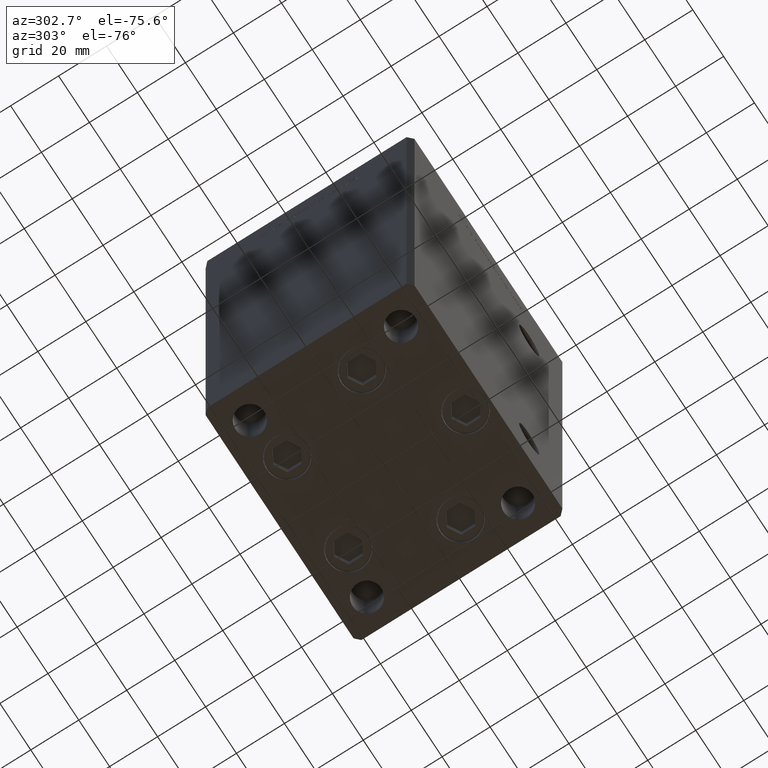
[diagram: clean part render]
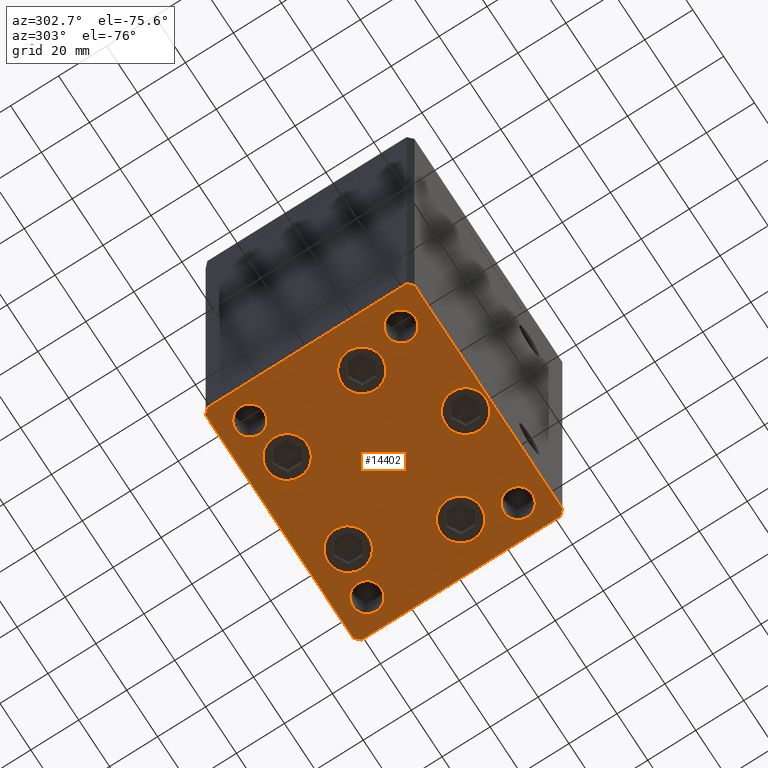
[diagram: same view with one face highlighted and labeled with its STEP entity id]
A machine part, auxiliary view. The second image highlights one B-rep face of the part: STEP entity #14402.
In plain terms, the highlighted planar face has unit normal (0, 0, -1).
Its self-contained STEP definition (entity closure, byte-faithful):
#284 = VERTEX_POINT ( 'NONE', #8846 ) ;
#310 = EDGE_CURVE ( 'NONE', #10782, #35854, #21615, .T. ) ;
#400 = VECTOR ( 'NONE', #9220, 1000.000000000000000 ) ;
#463 = CARTESIAN_POINT ( 'NONE',  ( 44.00000000000000000, 31.49999999999999289, 0.000000000000000000 ) ) ;
#598 = ORIENTED_EDGE ( 'NONE', *, *, #3019, .T. ) ;
#749 = CIRCLE ( 'NONE', #32765, 8.500000000000000000 ) ;
#963 = LINE ( 'NONE', #5705, #17200 ) ;
#985 = EDGE_LOOP ( 'NONE', ( #4115, #16907 ) ) ;
#1098 = DIRECTION ( 'NONE',  ( 1.000000000000000000, 0.000000000000000000, 0.000000000000000000 ) ) ;
#1134 = CARTESIAN_POINT ( 'NONE',  ( 47.99999999999990763, 43.50000000000000000, 0.000000000000000000 ) ) ;
#1200 = ORIENTED_EDGE ( 'NONE', *, *, #44315, .T. ) ;
#1215 = CARTESIAN_POINT ( 'NONE',  ( 8.500000000000003553, -34.00000000000000000, 0.000000000000000000 ) ) ;
#1233 = CARTESIAN_POINT ( 'NONE',  ( 38.00000000000000000, 31.49999999999999289, 0.000000000000000000 ) ) ;
#1415 = EDGE_CURVE ( 'NONE', #51004, #44416, #24982, .T. ) ;
#1787 = CARTESIAN_POINT ( 'NONE',  ( 4.163799117101000559E-15, -34.00000000000000000, 0.000000000000000000 ) ) ;
#2207 = VECTOR ( 'NONE', #33576, 1000.000000000000000 ) ;
#2396 = CARTESIAN_POINT ( 'NONE',  ( -48.00000000000000711, 43.49999999999996447, 0.000000000000000000 ) ) ;
#3019 = EDGE_CURVE ( 'NONE', #21949, #49872, #5696, .T. ) ;
#3061 = VECTOR ( 'NONE', #12252, 1000.000000000000000 ) ;
#3273 = CARTESIAN_POINT ( 'NONE',  ( 19.82068048781373193, 27.62500000000000000, 0.000000000000000000 ) ) ;
#3591 = AXIS2_PLACEMENT_3D ( 'NONE', #9272, #17981, #1098 ) ;
#3695 = ORIENTED_EDGE ( 'NONE', *, *, #19233, .T. ) ;
#3965 = VERTEX_POINT ( 'NONE', #8237 ) ;
#4056 = CARTESIAN_POINT ( 'NONE',  ( -47.99999999999999289, -43.50000000000001421, 0.000000000000000000 ) ) ;
#4079 = ORIENTED_EDGE ( 'NONE', *, *, #49234, .T. ) ;
#4100 = VERTEX_POINT ( 'NONE', #2396 ) ;
#4115 = ORIENTED_EDGE ( 'NONE', *, *, #47349, .T. ) ;
#4297 = CARTESIAN_POINT ( 'NONE',  ( -32.00000000000000000, 31.50000000000000000, 0.000000000000000000 ) ) ;
#4408 = DIRECTION ( 'NONE',  ( 1.000000000000000000, 0.000000000000000000, 0.000000000000000000 ) ) ;
#4498 = DIRECTION ( 'NONE',  ( -0.7071067811865474617, 0.7071067811865474617, 0.000000000000000000 ) ) ;
#4534 = VECTOR ( 'NONE', #4498, 1000.000000000000114 ) ;
#4627 = EDGE_CURVE ( 'NONE', #44802, #31048, #29439, .T. ) ;
#4743 = ORIENTED_EDGE ( 'NONE', *, *, #42031, .T. ) ;
#5439 = CARTESIAN_POINT ( 'NONE',  ( -50.00000000000000000, -41.50000000000000000, 0.000000000000000000 ) ) ;
#5459 = CARTESIAN_POINT ( 'NONE',  ( 19.82068048781373193, 27.62500000000000000, 0.000000000000000000 ) ) ;
#5696 = CIRCLE ( 'NONE', #14106, 6.000000000000005329 ) ;
#5705 = CARTESIAN_POINT ( 'NONE',  ( -48.00000000000000711, 43.49999999999996447, 0.000000000000000000 ) ) ;
#5711 = DIRECTION ( 'NONE',  ( 1.000000000000000000, 0.000000000000000000, 0.000000000000000000 ) ) ;
#5811 = DIRECTION ( 'NONE',  ( 1.000000000000000000, 0.000000000000000000, 0.000000000000000000 ) ) ;
#6248 = DIRECTION ( 'NONE',  ( 1.000000000000000000, 0.000000000000000000, 0.000000000000000000 ) ) ;
#6457 = AXIS2_PLACEMENT_3D ( 'NONE', #29150, #24928, #25539 ) ;
#7692 = VERTEX_POINT ( 'NONE', #46104 ) ;
#8237 = CARTESIAN_POINT ( 'NONE',  ( 32.00000000000000000, -31.49999999999999289, 0.000000000000000000 ) ) ;
#8300 = CARTESIAN_POINT ( 'NONE',  ( 38.00000000000000000, -31.49999999999999289, 0.000000000000000000 ) ) ;
#8388 = PLANE ( 'NONE',  #44644 ) ;
#8394 = CARTESIAN_POINT ( 'NONE',  ( 32.05550741379015278, -11.33333333333333037, 0.000000000000000000 ) ) ;
#8537 = AXIS2_PLACEMENT_3D ( 'NONE', #1787, #33962, #50070 ) ;
#8846 = CARTESIAN_POINT ( 'NONE',  ( 47.99999999999999289, -43.50000000000001421, 0.000000000000000000 ) ) ;
#8859 = CIRCLE ( 'NONE', #10535, 5.999999999999998224 ) ;
#9036 = CARTESIAN_POINT ( 'NONE',  ( 11.32068048781373015, 27.62500000000000000, 0.000000000000000000 ) ) ;
#9158 = VERTEX_POINT ( 'NONE', #35211 ) ;
#9220 = DIRECTION ( 'NONE',  ( 8.360113137237628665E-17, -1.000000000000000000, 0.000000000000000000 ) ) ;
#9272 = CARTESIAN_POINT ( 'NONE',  ( -38.00000000000000000, 31.50000000000000000, 0.000000000000000000 ) ) ;
#9486 = ORIENTED_EDGE ( 'NONE', *, *, #49007, .T. ) ;
#9923 = EDGE_CURVE ( 'NONE', #3965, #44829, #21004, .T. ) ;
#10321 = CARTESIAN_POINT ( 'NONE',  ( 38.00000000000000000, 31.49999999999999289, 0.000000000000000000 ) ) ;
#10535 = AXIS2_PLACEMENT_3D ( 'NONE', #10321, #34055, #38804 ) ;
#10722 = CARTESIAN_POINT ( 'NONE',  ( 47.99999999999999289, -43.50000000000001421, 0.000000000000000000 ) ) ;
#10782 = VERTEX_POINT ( 'NONE', #33094 ) ;
#10823 = ORIENTED_EDGE ( 'NONE', *, *, #42815, .F. ) ;
#11199 = VERTEX_POINT ( 'NONE', #46435 ) ;
#11994 = LINE ( 'NONE', #4056, #3061 ) ;
#12093 = FACE_OUTER_BOUND ( 'NONE', #26968, .T. ) ;
#12188 = DIRECTION ( 'NONE',  ( 1.000000000000000000, 0.000000000000000000, 0.000000000000000000 ) ) ;
#12252 = DIRECTION ( 'NONE',  ( 1.000000000000000000, 0.000000000000000000, 0.000000000000000000 ) ) ;
#12456 = EDGE_CURVE ( 'NONE', #24091, #32415, #749, .T. ) ;
#12907 = DIRECTION ( 'NONE',  ( 0.000000000000000000, -0.000000000000000000, -1.000000000000000000 ) ) ;
#12955 = CARTESIAN_POINT ( 'NONE',  ( -31.99999999999998579, -31.50000000000000000, 0.000000000000000000 ) ) ;
#13489 = VERTEX_POINT ( 'NONE', #45475 ) ;
#13706 = EDGE_CURVE ( 'NONE', #284, #11199, #23345, .T. ) ;
#13905 = DIRECTION ( 'NONE',  ( 1.000000000000000000, 0.000000000000000000, 0.000000000000000000 ) ) ;
#14106 = AXIS2_PLACEMENT_3D ( 'NONE', #28518, #32244, #36971 ) ;
#14402 = ADVANCED_FACE ( 'NONE', ( #25232, #40328, #49013, #16823, #44799, #45302, #28681, #16567, #12093, #44536 ), #8388, .T. ) ;
#14996 = VERTEX_POINT ( 'NONE', #4297 ) ;
#15010 = VERTEX_POINT ( 'NONE', #9036 ) ;
#15050 = VECTOR ( 'NONE', #49503, 1000.000000000000114 ) ;
#15627 = AXIS2_PLACEMENT_3D ( 'NONE', #40516, #44986, #43960 ) ;
#16090 = EDGE_LOOP ( 'NONE', ( #31376, #49359 ) ) ;
#16567 = FACE_BOUND ( 'NONE', #25561, .T. ) ;
#16758 = DIRECTION ( 'NONE',  ( -1.000000000000000000, -3.614007241618350743E-16, 0.000000000000000000 ) ) ;
#16823 = FACE_BOUND ( 'NONE', #16090, .T. ) ;
#16907 = ORIENTED_EDGE ( 'NONE', *, *, #23795, .T. ) ;
#17108 = CARTESIAN_POINT ( 'NONE',  ( -47.99999999999999289, -43.50000000000001421, 0.000000000000000000 ) ) ;
#17200 = VECTOR ( 'NONE', #42115, 1000.000000000000000 ) ;
#17332 = CARTESIAN_POINT ( 'NONE',  ( 38.00000000000000000, -31.49999999999999289, 0.000000000000000000 ) ) ;
#17344 = AXIS2_PLACEMENT_3D ( 'NONE', #3273, #50792, #26239 ) ;
#17688 = CARTESIAN_POINT ( 'NONE',  ( -19.82068048781373903, 27.62499999999999645, 0.000000000000000000 ) ) ;
#17815 = AXIS2_PLACEMENT_3D ( 'NONE', #5459, #49790, #6248 ) ;
#17981 = DIRECTION ( 'NONE',  ( -0.000000000000000000, 0.000000000000000000, 1.000000000000000000 ) ) ;
#18095 = EDGE_CURVE ( 'NONE', #46883, #14996, #36444, .T. ) ;
#18156 = DIRECTION ( 'NONE',  ( 1.000000000000000000, 0.000000000000000000, 0.000000000000000000 ) ) ;
#18175 = AXIS2_PLACEMENT_3D ( 'NONE', #8394, #28161, #32404 ) ;
#18381 = DIRECTION ( 'NONE',  ( 0.000000000000000000, -0.000000000000000000, -1.000000000000000000 ) ) ;
#18422 = DIRECTION ( 'NONE',  ( -0.000000000000000000, 0.000000000000000000, 1.000000000000000000 ) ) ;
#18715 = AXIS2_PLACEMENT_3D ( 'NONE', #1233, #25220, #5711 ) ;
#18760 = EDGE_CURVE ( 'NONE', #14996, #46883, #38973, .T. ) ;
#19233 = EDGE_CURVE ( 'NONE', #44829, #3965, #30557, .T. ) ;
#19581 = VECTOR ( 'NONE', #16758, 1000.000000000000000 ) ;
#19682 = CARTESIAN_POINT ( 'NONE',  ( -23.55550741379015278, -11.33333333333333748, 0.000000000000000000 ) ) ;
#19920 = CARTESIAN_POINT ( 'NONE',  ( 23.55550741379015633, -11.33333333333333037, 0.000000000000000000 ) ) ;
#20500 = CARTESIAN_POINT ( 'NONE',  ( -32.05550741379015278, -11.33333333333333925, 0.000000000000000000 ) ) ;
#20656 = CIRCLE ( 'NONE', #15627, 6.000000000000005329 ) ;
#20915 = LINE ( 'NONE', #24864, #2207 ) ;
#21004 = CIRCLE ( 'NONE', #50524, 5.999999999999998224 ) ;
#21021 = CARTESIAN_POINT ( 'NONE',  ( 0.000000000000000000, 0.000000000000000000, 0.000000000000000000 ) ) ;
#21323 = CARTESIAN_POINT ( 'NONE',  ( 32.05550741379015278, -11.33333333333333037, 0.000000000000000000 ) ) ;
#21366 = EDGE_LOOP ( 'NONE', ( #3695, #51685 ) ) ;
#21575 = ORIENTED_EDGE ( 'NONE', *, *, #12456, .T. ) ;
#21615 = CIRCLE ( 'NONE', #6457, 8.500000000000000000 ) ;
#21949 = VERTEX_POINT ( 'NONE', #12955 ) ;
#22875 = CARTESIAN_POINT ( 'NONE',  ( -38.00000000000000000, 31.50000000000000000, 0.000000000000000000 ) ) ;
#22902 = EDGE_LOOP ( 'NONE', ( #21575, #29188 ) ) ;
#23024 = CARTESIAN_POINT ( 'NONE',  ( -50.00000000000000711, 41.49999999999995026, 0.000000000000000000 ) ) ;
#23054 = AXIS2_PLACEMENT_3D ( 'NONE', #17688, #45911, #5811 ) ;
#23141 = ORIENTED_EDGE ( 'NONE', *, *, #29525, .T. ) ;
#23241 = CIRCLE ( 'NONE', #17344, 8.500000000000000000 ) ;
#23345 = LINE ( 'NONE', #10722, #37016 ) ;
#23795 = EDGE_CURVE ( 'NONE', #13489, #28895, #32907, .T. ) ;
#24091 = VERTEX_POINT ( 'NONE', #40042 ) ;
#24445 = DIRECTION ( 'NONE',  ( 0.000000000000000000, -0.000000000000000000, -1.000000000000000000 ) ) ;
#24794 = CARTESIAN_POINT ( 'NONE',  ( 49.99999999999992184, 41.49999999999998579, 0.000000000000000000 ) ) ;
#24850 = ORIENTED_EDGE ( 'NONE', *, *, #33103, .F. ) ;
#24864 = CARTESIAN_POINT ( 'NONE',  ( 50.00000000000000000, -41.49999999999999289, 0.000000000000000000 ) ) ;
#24928 = DIRECTION ( 'NONE',  ( 0.000000000000000000, -0.000000000000000000, -1.000000000000000000 ) ) ;
#24982 = CIRCLE ( 'NONE', #31748, 8.500000000000000000 ) ;
#25092 = EDGE_CURVE ( 'NONE', #44416, #51004, #28755, .T. ) ;
#25104 = VERTEX_POINT ( 'NONE', #50854 ) ;
#25220 = DIRECTION ( 'NONE',  ( -0.000000000000000000, 0.000000000000000000, 1.000000000000000000 ) ) ;
#25232 = FACE_BOUND ( 'NONE', #22902, .T. ) ;
#25261 = ORIENTED_EDGE ( 'NONE', *, *, #34166, .T. ) ;
#25539 = DIRECTION ( 'NONE',  ( 1.000000000000000000, 0.000000000000000000, 0.000000000000000000 ) ) ;
#25561 = EDGE_LOOP ( 'NONE', ( #36157, #29376 ) ) ;
#25785 = CARTESIAN_POINT ( 'NONE',  ( -44.00000000000000000, -31.50000000000000000, 0.000000000000000000 ) ) ;
#26239 = DIRECTION ( 'NONE',  ( 1.000000000000000000, 0.000000000000000000, 0.000000000000000000 ) ) ;
#26968 = EDGE_LOOP ( 'NONE', ( #48341, #40655, #29276, #4079, #36406, #25261, #51483, #44313 ) ) ;
#27238 = CARTESIAN_POINT ( 'NONE',  ( 44.00000000000000000, -31.49999999999999289, 0.000000000000000000 ) ) ;
#28161 = DIRECTION ( 'NONE',  ( 0.000000000000000000, -0.000000000000000000, -1.000000000000000000 ) ) ;
#28348 = LINE ( 'NONE', #35761, #19581 ) ;
#28405 = CARTESIAN_POINT ( 'NONE',  ( 4.163799117101000559E-15, -34.00000000000000000, 0.000000000000000000 ) ) ;
#28518 = CARTESIAN_POINT ( 'NONE',  ( -37.99999999999999289, -31.50000000000000000, 0.000000000000000000 ) ) ;
#28681 = FACE_BOUND ( 'NONE', #21366, .T. ) ;
#28755 = CIRCLE ( 'NONE', #8537, 8.500000000000000000 ) ;
#28853 = DIRECTION ( 'NONE',  ( 0.000000000000000000, -0.000000000000000000, -1.000000000000000000 ) ) ;
#28895 = VERTEX_POINT ( 'NONE', #19920 ) ;
#29071 = CARTESIAN_POINT ( 'NONE',  ( -44.00000000000000000, 31.50000000000000000, 0.000000000000000000 ) ) ;
#29150 = CARTESIAN_POINT ( 'NONE',  ( -32.05550741379015278, -11.33333333333333925, 0.000000000000000000 ) ) ;
#29188 = ORIENTED_EDGE ( 'NONE', *, *, #37576, .T. ) ;
#29276 = ORIENTED_EDGE ( 'NONE', *, *, #13706, .T. ) ;
#29376 = ORIENTED_EDGE ( 'NONE', *, *, #18095, .F. ) ;
#29439 = LINE ( 'NONE', #5439, #15050 ) ;
#29441 = DIRECTION ( 'NONE',  ( 0.000000000000000000, -0.000000000000000000, -1.000000000000000000 ) ) ;
#29525 = EDGE_CURVE ( 'NONE', #7692, #15010, #38006, .T. ) ;
#30557 = CIRCLE ( 'NONE', #32114, 5.999999999999998224 ) ;
#30859 = EDGE_LOOP ( 'NONE', ( #34986, #1200 ) ) ;
#31048 = VERTEX_POINT ( 'NONE', #17108 ) ;
#31376 = ORIENTED_EDGE ( 'NONE', *, *, #25092, .T. ) ;
#31647 = CIRCLE ( 'NONE', #18175, 8.499999999999992895 ) ;
#31650 = CIRCLE ( 'NONE', #38409, 8.500000000000000000 ) ;
#31748 = AXIS2_PLACEMENT_3D ( 'NONE', #28405, #24445, #4408 ) ;
#32114 = AXIS2_PLACEMENT_3D ( 'NONE', #17332, #18381, #13905 ) ;
#32244 = DIRECTION ( 'NONE',  ( 0.000000000000000000, -0.000000000000000000, -1.000000000000000000 ) ) ;
#32404 = DIRECTION ( 'NONE',  ( 1.000000000000000000, 0.000000000000000000, 0.000000000000000000 ) ) ;
#32415 = VERTEX_POINT ( 'NONE', #41785 ) ;
#32648 = DIRECTION ( 'NONE',  ( 1.000000000000000000, 0.000000000000000000, 0.000000000000000000 ) ) ;
#32765 = AXIS2_PLACEMENT_3D ( 'NONE', #43329, #39904, #12188 ) ;
#32907 = CIRCLE ( 'NONE', #41346, 8.499999999999992895 ) ;
#33094 = CARTESIAN_POINT ( 'NONE',  ( -40.55550741379015278, -11.33333333333333925, 0.000000000000000000 ) ) ;
#33103 = EDGE_CURVE ( 'NONE', #45006, #9158, #41464, .T. ) ;
#33576 = DIRECTION ( 'NONE',  ( -1.003213576468515193E-15, 1.000000000000000000, 0.000000000000000000 ) ) ;
#33962 = DIRECTION ( 'NONE',  ( 0.000000000000000000, -0.000000000000000000, -1.000000000000000000 ) ) ;
#34055 = DIRECTION ( 'NONE',  ( -0.000000000000000000, 0.000000000000000000, 1.000000000000000000 ) ) ;
#34166 = EDGE_CURVE ( 'NONE', #51149, #4100, #28348, .T. ) ;
#34193 = CARTESIAN_POINT ( 'NONE',  ( -8.499999999999996447, -34.00000000000000000, 0.000000000000000000 ) ) ;
#34986 = ORIENTED_EDGE ( 'NONE', *, *, #310, .T. ) ;
#35211 = CARTESIAN_POINT ( 'NONE',  ( 32.00000000000000000, 31.49999999999999289, 0.000000000000000000 ) ) ;
#35761 = CARTESIAN_POINT ( 'NONE',  ( 47.99999999999990763, 43.50000000000000000, 0.000000000000000000 ) ) ;
#35854 = VERTEX_POINT ( 'NONE', #19682 ) ;
#36157 = ORIENTED_EDGE ( 'NONE', *, *, #18760, .F. ) ;
#36406 = ORIENTED_EDGE ( 'NONE', *, *, #38287, .T. ) ;
#36444 = CIRCLE ( 'NONE', #47411, 5.999999999999998224 ) ;
#36971 = DIRECTION ( 'NONE',  ( 1.000000000000000000, 0.000000000000000000, 0.000000000000000000 ) ) ;
#37016 = VECTOR ( 'NONE', #38956, 1000.000000000000000 ) ;
#37576 = EDGE_CURVE ( 'NONE', #32415, #24091, #50877, .T. ) ;
#37638 = DIRECTION ( 'NONE',  ( 1.000000000000000000, 0.000000000000000000, 0.000000000000000000 ) ) ;
#38006 = CIRCLE ( 'NONE', #17815, 8.500000000000000000 ) ;
#38287 = EDGE_CURVE ( 'NONE', #25104, #51149, #44099, .T. ) ;
#38409 = AXIS2_PLACEMENT_3D ( 'NONE', #20500, #29441, #37638 ) ;
#38804 = DIRECTION ( 'NONE',  ( 1.000000000000000000, 0.000000000000000000, 0.000000000000000000 ) ) ;
#38956 = DIRECTION ( 'NONE',  ( 0.7071067811865463515, 0.7071067811865487940, 0.000000000000000000 ) ) ;
#38973 = CIRCLE ( 'NONE', #3591, 5.999999999999998224 ) ;
#39139 = CARTESIAN_POINT ( 'NONE',  ( -50.00000000000000000, -41.50000000000000000, 0.000000000000000000 ) ) ;
#39904 = DIRECTION ( 'NONE',  ( 0.000000000000000000, -0.000000000000000000, -1.000000000000000000 ) ) ;
#40042 = CARTESIAN_POINT ( 'NONE',  ( -28.32068048781373903, 27.62499999999999645, 0.000000000000000000 ) ) ;
#40254 = EDGE_CURVE ( 'NONE', #4100, #41294, #963, .T. ) ;
#40328 = FACE_BOUND ( 'NONE', #47796, .T. ) ;
#40516 = CARTESIAN_POINT ( 'NONE',  ( -37.99999999999999289, -31.50000000000000000, 0.000000000000000000 ) ) ;
#40655 = ORIENTED_EDGE ( 'NONE', *, *, #50024, .T. ) ;
#41294 = VERTEX_POINT ( 'NONE', #23024 ) ;
#41346 = AXIS2_PLACEMENT_3D ( 'NONE', #21323, #12907, #45604 ) ;
#41348 = DIRECTION ( 'NONE',  ( -0.000000000000000000, 0.000000000000000000, 1.000000000000000000 ) ) ;
#41464 = CIRCLE ( 'NONE', #18715, 5.999999999999998224 ) ;
#41676 = CARTESIAN_POINT ( 'NONE',  ( -50.00000000000000711, 41.49999999999995026, 0.000000000000000000 ) ) ;
#41785 = CARTESIAN_POINT ( 'NONE',  ( -11.32068048781373726, 27.62499999999999645, 0.000000000000000000 ) ) ;
#41793 = EDGE_CURVE ( 'NONE', #41294, #44802, #45370, .T. ) ;
#42031 = EDGE_CURVE ( 'NONE', #49872, #21949, #20656, .T. ) ;
#42115 = DIRECTION ( 'NONE',  ( -0.7071067811865463515, -0.7071067811865487940, 0.000000000000000000 ) ) ;
#42815 = EDGE_CURVE ( 'NONE', #9158, #45006, #8859, .T. ) ;
#43329 = CARTESIAN_POINT ( 'NONE',  ( -19.82068048781373903, 27.62499999999999645, 0.000000000000000000 ) ) ;
#43960 = DIRECTION ( 'NONE',  ( 1.000000000000000000, 0.000000000000000000, 0.000000000000000000 ) ) ;
#44099 = LINE ( 'NONE', #24794, #4534 ) ;
#44313 = ORIENTED_EDGE ( 'NONE', *, *, #41793, .T. ) ;
#44315 = EDGE_CURVE ( 'NONE', #35854, #10782, #31650, .T. ) ;
#44416 = VERTEX_POINT ( 'NONE', #34193 ) ;
#44536 = FACE_BOUND ( 'NONE', #52013, .T. ) ;
#44644 = AXIS2_PLACEMENT_3D ( 'NONE', #21021, #41348, #32648 ) ;
#44799 = FACE_BOUND ( 'NONE', #30859, .T. ) ;
#44802 = VERTEX_POINT ( 'NONE', #39139 ) ;
#44829 = VERTEX_POINT ( 'NONE', #27238 ) ;
#44853 = EDGE_LOOP ( 'NONE', ( #24850, #10823 ) ) ;
#44986 = DIRECTION ( 'NONE',  ( 0.000000000000000000, -0.000000000000000000, -1.000000000000000000 ) ) ;
#45006 = VERTEX_POINT ( 'NONE', #463 ) ;
#45220 = DIRECTION ( 'NONE',  ( 1.000000000000000000, 0.000000000000000000, 0.000000000000000000 ) ) ;
#45302 = FACE_BOUND ( 'NONE', #44853, .T. ) ;
#45370 = LINE ( 'NONE', #41676, #400 ) ;
#45475 = CARTESIAN_POINT ( 'NONE',  ( 40.55550741379014568, -11.33333333333332860, 0.000000000000000000 ) ) ;
#45604 = DIRECTION ( 'NONE',  ( 1.000000000000000000, 0.000000000000000000, 0.000000000000000000 ) ) ;
#45911 = DIRECTION ( 'NONE',  ( 0.000000000000000000, -0.000000000000000000, -1.000000000000000000 ) ) ;
#46104 = CARTESIAN_POINT ( 'NONE',  ( 28.32068048781373193, 27.62500000000000000, 0.000000000000000000 ) ) ;
#46435 = CARTESIAN_POINT ( 'NONE',  ( 50.00000000000000000, -41.49999999999999289, 0.000000000000000000 ) ) ;
#46883 = VERTEX_POINT ( 'NONE', #29071 ) ;
#47349 = EDGE_CURVE ( 'NONE', #28895, #13489, #31647, .T. ) ;
#47411 = AXIS2_PLACEMENT_3D ( 'NONE', #22875, #18422, #18156 ) ;
#47796 = EDGE_LOOP ( 'NONE', ( #9486, #23141 ) ) ;
#48341 = ORIENTED_EDGE ( 'NONE', *, *, #4627, .T. ) ;
#49007 = EDGE_CURVE ( 'NONE', #15010, #7692, #23241, .T. ) ;
#49013 = FACE_BOUND ( 'NONE', #985, .T. ) ;
#49234 = EDGE_CURVE ( 'NONE', #11199, #25104, #20915, .T. ) ;
#49359 = ORIENTED_EDGE ( 'NONE', *, *, #1415, .T. ) ;
#49503 = DIRECTION ( 'NONE',  ( 0.7071067811865474617, -0.7071067811865474617, 0.000000000000000000 ) ) ;
#49790 = DIRECTION ( 'NONE',  ( 0.000000000000000000, -0.000000000000000000, -1.000000000000000000 ) ) ;
#49872 = VERTEX_POINT ( 'NONE', #25785 ) ;
#50024 = EDGE_CURVE ( 'NONE', #31048, #284, #11994, .T. ) ;
#50070 = DIRECTION ( 'NONE',  ( 1.000000000000000000, 0.000000000000000000, 0.000000000000000000 ) ) ;
#50524 = AXIS2_PLACEMENT_3D ( 'NONE', #8300, #28853, #45220 ) ;
#50792 = DIRECTION ( 'NONE',  ( 0.000000000000000000, -0.000000000000000000, -1.000000000000000000 ) ) ;
#50854 = CARTESIAN_POINT ( 'NONE',  ( 49.99999999999992184, 41.49999999999998579, 0.000000000000000000 ) ) ;
#50877 = CIRCLE ( 'NONE', #23054, 8.500000000000000000 ) ;
#51004 = VERTEX_POINT ( 'NONE', #1215 ) ;
#51149 = VERTEX_POINT ( 'NONE', #1134 ) ;
#51483 = ORIENTED_EDGE ( 'NONE', *, *, #40254, .T. ) ;
#51685 = ORIENTED_EDGE ( 'NONE', *, *, #9923, .T. ) ;
#52013 = EDGE_LOOP ( 'NONE', ( #598, #4743 ) ) ;